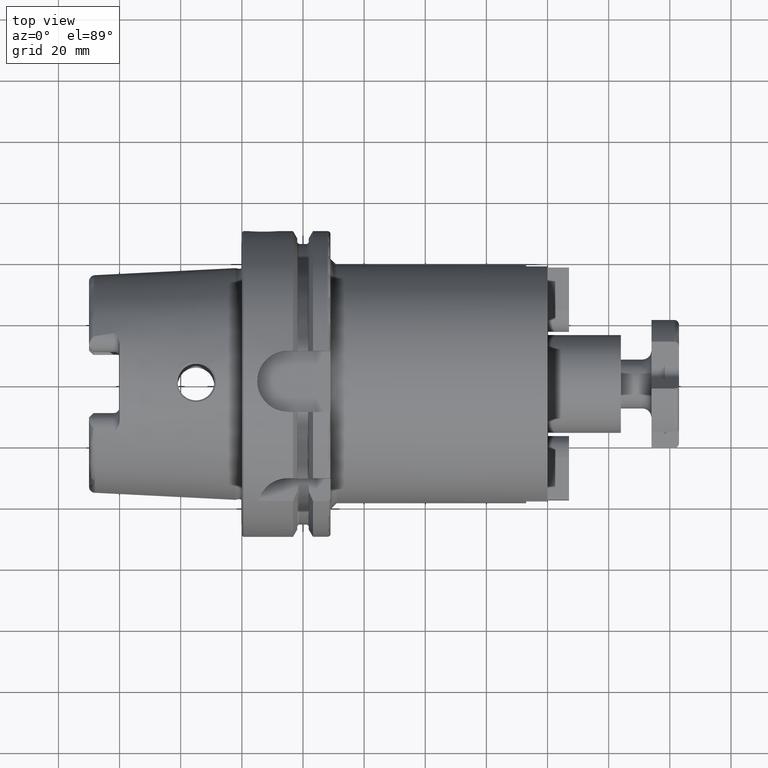
[diagram: clean part render]
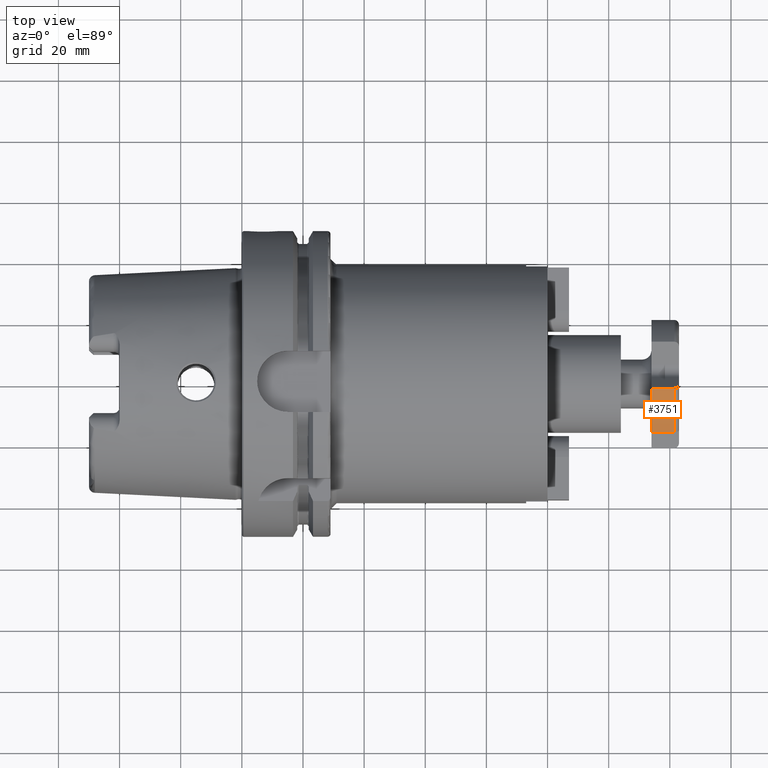
[diagram: same view with one face highlighted and labeled with its STEP entity id]
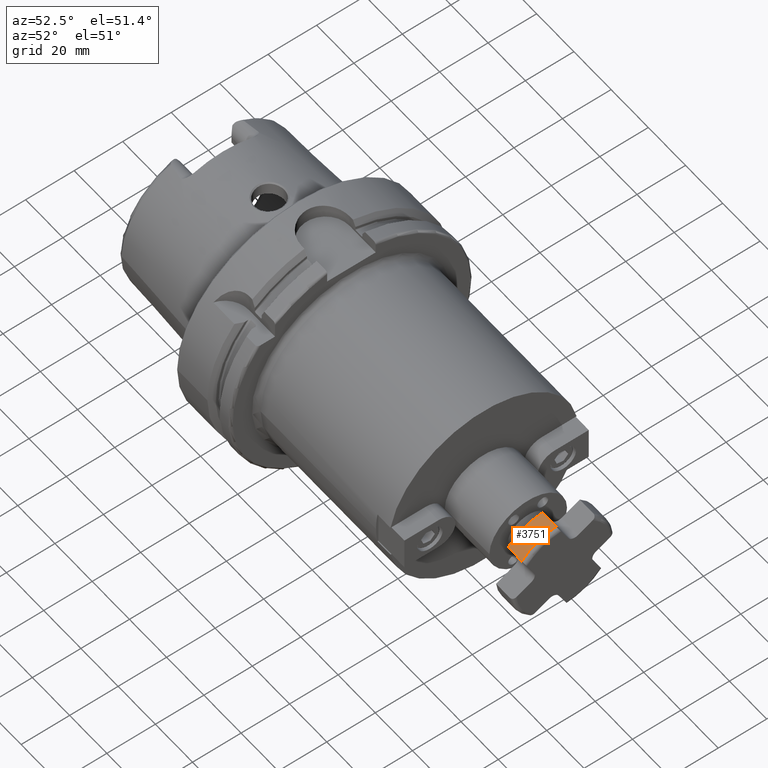
[diagram: same view with one face highlighted and labeled with its STEP entity id]
A machine part, top view. The second image highlights one B-rep face of the part: STEP entity #3751.
A second angle (auxiliary view) of the same face is appended — the face is thin or edge-on in the first view.
In plain terms, the highlighted cylindrical surface (partial cylindrical patch) has radius 21 mm, axis along (-1, 0, -0).
Its self-contained STEP definition (entity closure, byte-faithful):
#836=CYLINDRICAL_SURFACE('',#4320,21.);
#1005=FACE_OUTER_BOUND('',#1210,.T.);
#1210=EDGE_LOOP('',(#3445,#3446,#3447,#3448));
#1393=LINE('',#7663,#1585);
#1394=LINE('',#7666,#1586);
#1585=VECTOR('',#5339,10.);
#1586=VECTOR('',#5342,10.);
#1814=CIRCLE('',#4319,21.);
#1815=CIRCLE('',#4321,21.);
#2113=VERTEX_POINT('',#7635);
#2116=VERTEX_POINT('',#7649);
#2117=VERTEX_POINT('',#7662);
#2118=VERTEX_POINT('',#7664);
#2566=EDGE_CURVE('',#2116,#2113,#1814,.T.);
#2567=EDGE_CURVE('',#2116,#2117,#1393,.T.);
#2568=EDGE_CURVE('',#2118,#2117,#1815,.T.);
#2569=EDGE_CURVE('',#2113,#2118,#1394,.T.);
#3445=ORIENTED_EDGE('',*,*,#2566,.F.);
#3446=ORIENTED_EDGE('',*,*,#2567,.T.);
#3447=ORIENTED_EDGE('',*,*,#2568,.F.);
#3448=ORIENTED_EDGE('',*,*,#2569,.F.);
#3751=ADVANCED_FACE('',(#1005),#836,.T.);
#4319=AXIS2_PLACEMENT_3D('',#7660,#5335,#5336);
#4320=AXIS2_PLACEMENT_3D('',#7661,#5337,#5338);
#4321=AXIS2_PLACEMENT_3D('',#7665,#5340,#5341);
#5335=DIRECTION('center_axis',(0.,0.,1.));
#5336=DIRECTION('ref_axis',(-1.,-1.05735526154777E-16,0.));
#5337=DIRECTION('center_axis',(0.,0.,-1.));
#5338=DIRECTION('ref_axis',(-0.924594658997505,0.380952380952381,0.));
#5339=DIRECTION('',(0.,0.,-1.));
#5340=DIRECTION('center_axis',(0.,0.,-1.));
#5341=DIRECTION('ref_axis',(-0.924594658997505,0.380952380952381,0.));
#5342=DIRECTION('',(0.,0.,-1.));
#7635=CARTESIAN_POINT('',(-19.4164878389476,-8.,-1.6));
#7649=CARTESIAN_POINT('',(-19.4164878389476,8.,-1.6));
#7660=CARTESIAN_POINT('Origin',(0.,0.,-1.6));
#7661=CARTESIAN_POINT('Origin',(0.,0.,0.));
#7662=CARTESIAN_POINT('',(-19.4164878389476,8.,-9.));
#7663=CARTESIAN_POINT('',(-19.4164878389476,8.,0.));
#7664=CARTESIAN_POINT('',(-19.4164878389476,-8.,-9.));
#7665=CARTESIAN_POINT('Origin',(0.,0.,-9.));
#7666=CARTESIAN_POINT('',(-19.4164878389476,-8.,0.));